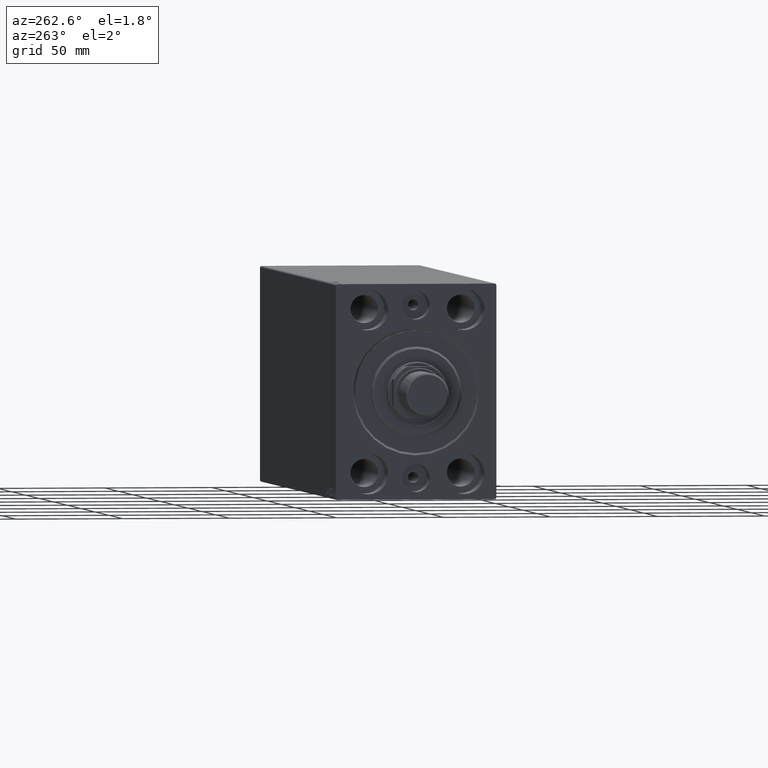
[diagram: clean part render]
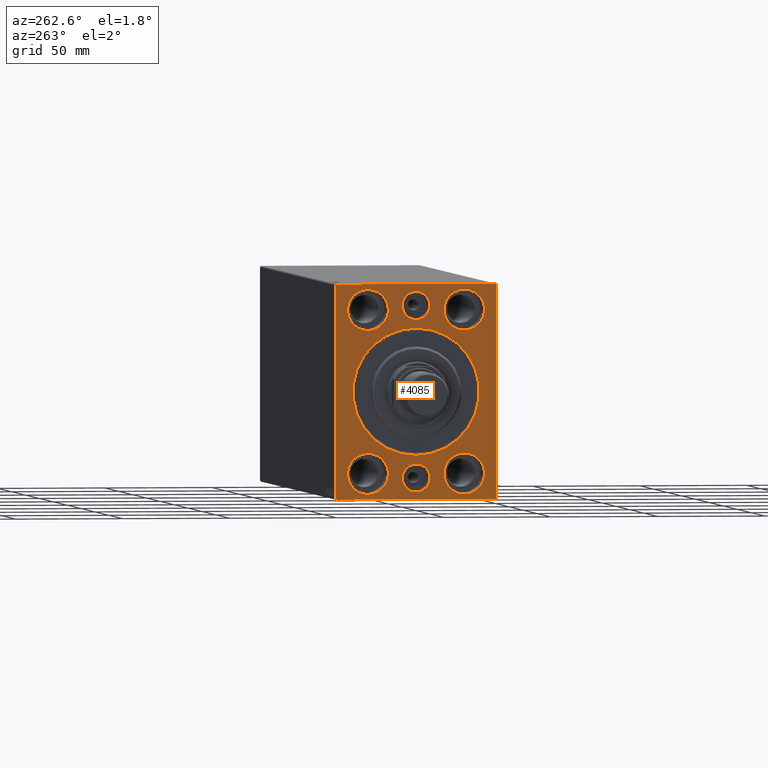
[diagram: same view with one face highlighted and labeled with its STEP entity id]
A machine part, auxiliary view. The second image highlights one B-rep face of the part: STEP entity #4085.
In plain terms, the highlighted planar face has unit normal (1, 0, 0).
Its self-contained STEP definition (entity closure, byte-faithful):
#24 = CIRCLE ( 'NONE', #17909, 6.499999999999999112 ) ;
#259 = DIRECTION ( 'NONE',  ( 0.000000000000000000, 0.000000000000000000, 1.000000000000000000 ) ) ;
#643 = AXIS2_PLACEMENT_3D ( 'NONE', #38310, #21307, #259 ) ;
#845 = ORIENTED_EDGE ( 'NONE', *, *, #22408, .T. ) ;
#861 = ORIENTED_EDGE ( 'NONE', *, *, #19230, .F. ) ;
#935 = ORIENTED_EDGE ( 'NONE', *, *, #21781, .T. ) ;
#1197 = DIRECTION ( 'NONE',  ( 0.000000000000000000, 0.000000000000000000, 1.000000000000000000 ) ) ;
#1763 = VERTEX_POINT ( 'NONE', #35763 ) ;
#1944 = ORIENTED_EDGE ( 'NONE', *, *, #34932, .F. ) ;
#2050 = CARTESIAN_POINT ( 'NONE',  ( 0.000000000000000000, 0.000000000000000000, -33.50000000000000000 ) ) ;
#2159 = DIRECTION ( 'NONE',  ( 1.000000000000000000, 0.000000000000000000, 0.000000000000000000 ) ) ;
#2347 = EDGE_CURVE ( 'NONE', #27330, #9064, #2796, .T. ) ;
#2478 = EDGE_CURVE ( 'NONE', #28062, #28492, #27124, .T. ) ;
#2796 = CIRCLE ( 'NONE', #34237, 9.500000000000001776 ) ;
#3045 = DIRECTION ( 'NONE',  ( -0.000000000000000000, 0.7071067811865474617, 0.7071067811865474617 ) ) ;
#3179 = VERTEX_POINT ( 'NONE', #38599 ) ;
#3441 = EDGE_CURVE ( 'NONE', #40237, #8487, #40082, .T. ) ;
#3509 = VERTEX_POINT ( 'NONE', #32928 ) ;
#3916 = CARTESIAN_POINT ( 'NONE',  ( 0.000000000000000000, -22.50000000000000711, -47.49999999999999289 ) ) ;
#4085 = ADVANCED_FACE ( 'NONE', ( #32598, #39550, #35957, #12008, #25666, #8903, #35726, #9549 ), #29472, .F. ) ;
#4148 = DIRECTION ( 'NONE',  ( 0.000000000000000000, 0.000000000000000000, 1.000000000000000000 ) ) ;
#4720 = DIRECTION ( 'NONE',  ( -1.000000000000000000, 0.000000000000000000, 0.000000000000000000 ) ) ;
#5338 = LINE ( 'NONE', #31977, #23656 ) ;
#5381 = DIRECTION ( 'NONE',  ( 0.000000000000000000, 0.000000000000000000, 1.000000000000000000 ) ) ;
#5806 = CIRCLE ( 'NONE', #30067, 9.500000000000001776 ) ;
#5856 = DIRECTION ( 'NONE',  ( -0.000000000000000000, 0.7071067811865426878, -0.7071067811865524577 ) ) ;
#5943 = VECTOR ( 'NONE', #5856, 1000.000000000000000 ) ;
#6370 = AXIS2_PLACEMENT_3D ( 'NONE', #39185, #4720, #41694 ) ;
#6635 = VECTOR ( 'NONE', #41648, 1000.000000000000000 ) ;
#6659 = CARTESIAN_POINT ( 'NONE',  ( 0.000000000000000000, -22.50000000000000711, -28.49999999999998934 ) ) ;
#6675 = CIRCLE ( 'NONE', #32428, 9.500000000000001776 ) ;
#6783 = ORIENTED_EDGE ( 'NONE', *, *, #22872, .T. ) ;
#7229 = VERTEX_POINT ( 'NONE', #43444 ) ;
#7354 = DIRECTION ( 'NONE',  ( 0.000000000000000000, 0.000000000000000000, 1.000000000000000000 ) ) ;
#7360 = AXIS2_PLACEMENT_3D ( 'NONE', #21229, #28169, #7354 ) ;
#8170 = CARTESIAN_POINT ( 'NONE',  ( 0.000000000000000000, 0.000000000000000000, 40.00000000000000000 ) ) ;
#8243 = DIRECTION ( 'NONE',  ( -1.000000000000000000, 0.000000000000000000, 0.000000000000000000 ) ) ;
#8343 = VERTEX_POINT ( 'NONE', #9393 ) ;
#8487 = VERTEX_POINT ( 'NONE', #27714 ) ;
#8667 = CARTESIAN_POINT ( 'NONE',  ( 0.000000000000000000, 0.000000000000000000, 0.000000000000000000 ) ) ;
#8800 = CARTESIAN_POINT ( 'NONE',  ( 0.000000000000000000, 22.49999999999999645, -47.49999999999999289 ) ) ;
#8903 = FACE_BOUND ( 'NONE', #25619, .T. ) ;
#8981 = DIRECTION ( 'NONE',  ( 0.000000000000000000, 1.000000000000000000, 9.251858538542970348E-17 ) ) ;
#9064 = VERTEX_POINT ( 'NONE', #26401 ) ;
#9339 = DIRECTION ( 'NONE',  ( 1.000000000000000000, 0.000000000000000000, 0.000000000000000000 ) ) ;
#9393 = CARTESIAN_POINT ( 'NONE',  ( 0.000000000000000000, 22.49999999999999645, -28.49999999999998934 ) ) ;
#9549 = FACE_OUTER_BOUND ( 'NONE', #30937, .T. ) ;
#9711 = ORIENTED_EDGE ( 'NONE', *, *, #22561, .F. ) ;
#10067 = EDGE_CURVE ( 'NONE', #42624, #1763, #20695, .T. ) ;
#10100 = LINE ( 'NONE', #17027, #5943 ) ;
#10315 = CARTESIAN_POINT ( 'NONE',  ( 0.000000000000000000, 37.49999999999999289, 50.00000000000000711 ) ) ;
#10816 = ORIENTED_EDGE ( 'NONE', *, *, #15572, .F. ) ;
#10896 = EDGE_CURVE ( 'NONE', #28492, #28062, #5806, .T. ) ;
#10950 = ORIENTED_EDGE ( 'NONE', *, *, #10896, .F. ) ;
#11332 = AXIS2_PLACEMENT_3D ( 'NONE', #20964, #34606, #4148 ) ;
#11394 = EDGE_CURVE ( 'NONE', #40237, #22878, #5338, .T. ) ;
#11683 = DIRECTION ( 'NONE',  ( -1.000000000000000000, 0.000000000000000000, 0.000000000000000000 ) ) ;
#11813 = ORIENTED_EDGE ( 'NONE', *, *, #10067, .F. ) ;
#11944 = EDGE_CURVE ( 'NONE', #39101, #44123, #32962, .T. ) ;
#12008 = FACE_BOUND ( 'NONE', #31726, .T. ) ;
#12280 = ORIENTED_EDGE ( 'NONE', *, *, #38776, .F. ) ;
#12869 = CARTESIAN_POINT ( 'NONE',  ( 0.000000000000000000, -37.50000000000000711, 49.49999999999994316 ) ) ;
#12895 = DIRECTION ( 'NONE',  ( 0.000000000000000000, 0.000000000000000000, -1.000000000000000000 ) ) ;
#13064 = CIRCLE ( 'NONE', #7360, 6.499999999999999112 ) ;
#13673 = AXIS2_PLACEMENT_3D ( 'NONE', #26220, #11683, #39865 ) ;
#14147 = DIRECTION ( 'NONE',  ( 0.000000000000000000, 0.000000000000000000, 1.000000000000000000 ) ) ;
#14169 = ORIENTED_EDGE ( 'NONE', *, *, #27650, .F. ) ;
#14564 = LINE ( 'NONE', #10315, #6635 ) ;
#15090 = DIRECTION ( 'NONE',  ( -1.000000000000000000, 0.000000000000000000, 0.000000000000000000 ) ) ;
#15206 = CIRCLE ( 'NONE', #28098, 29.50000000000002842 ) ;
#15572 = EDGE_CURVE ( 'NONE', #8343, #40795, #6675, .T. ) ;
#15637 = AXIS2_PLACEMENT_3D ( 'NONE', #40429, #9339, #29691 ) ;
#15766 = DIRECTION ( 'NONE',  ( 0.000000000000000000, 0.000000000000000000, 1.000000000000000000 ) ) ;
#15840 = ORIENTED_EDGE ( 'NONE', *, *, #19334, .F. ) ;
#16150 = CARTESIAN_POINT ( 'NONE',  ( 0.000000000000000000, 37.50000000000000711, -50.00000000000000000 ) ) ;
#16322 = VECTOR ( 'NONE', #43009, 1000.000000000000000 ) ;
#16375 = AXIS2_PLACEMENT_3D ( 'NONE', #19043, #22404, #5381 ) ;
#16464 = EDGE_LOOP ( 'NONE', ( #861, #43146 ) ) ;
#16500 = EDGE_CURVE ( 'NONE', #18245, #33535, #42064, .T. ) ;
#16814 = VERTEX_POINT ( 'NONE', #39957 ) ;
#17027 = CARTESIAN_POINT ( 'NONE',  ( 0.000000000000000000, 36.99999999999993605, 50.00000000000000711 ) ) ;
#17044 = CARTESIAN_POINT ( 'NONE',  ( 0.000000000000000000, -22.49999999999999645, 28.49999999999998934 ) ) ;
#17261 = AXIS2_PLACEMENT_3D ( 'NONE', #42748, #39630, #35158 ) ;
#17345 = CARTESIAN_POINT ( 'NONE',  ( 0.000000000000000000, -22.50000000000000711, -37.99999999999999289 ) ) ;
#17585 = EDGE_LOOP ( 'NONE', ( #26062, #10950 ) ) ;
#17820 = CIRCLE ( 'NONE', #643, 6.499999999999999112 ) ;
#17909 = AXIS2_PLACEMENT_3D ( 'NONE', #8170, #15090, #15766 ) ;
#17927 = VECTOR ( 'NONE', #30984, 1000.000000000000000 ) ;
#18245 = VERTEX_POINT ( 'NONE', #17044 ) ;
#18374 = CARTESIAN_POINT ( 'NONE',  ( 0.000000000000000000, 7.960204194457798435E-16, 33.50000000000000000 ) ) ;
#18594 = CARTESIAN_POINT ( 'NONE',  ( 0.000000000000000000, -22.49999999999999645, 47.49999999999999289 ) ) ;
#18685 = CARTESIAN_POINT ( 'NONE',  ( 0.000000000000000000, 37.50000000000000711, -49.49999999999997158 ) ) ;
#18811 = LINE ( 'NONE', #43417, #20977 ) ;
#18857 = ORIENTED_EDGE ( 'NONE', *, *, #30229, .F. ) ;
#19043 = CARTESIAN_POINT ( 'NONE',  ( 0.000000000000000000, -22.49999999999999645, 37.99999999999999289 ) ) ;
#19230 = EDGE_CURVE ( 'NONE', #29062, #16814, #17820, .T. ) ;
#19334 = EDGE_CURVE ( 'NONE', #33535, #18245, #24969, .T. ) ;
#19350 = ORIENTED_EDGE ( 'NONE', *, *, #39395, .T. ) ;
#19982 = ORIENTED_EDGE ( 'NONE', *, *, #11944, .F. ) ;
#20096 = CIRCLE ( 'NONE', #17261, 9.500000000000001776 ) ;
#20615 = AXIS2_PLACEMENT_3D ( 'NONE', #28827, #42047, #35755 ) ;
#20641 = DIRECTION ( 'NONE',  ( -1.000000000000000000, 0.000000000000000000, 0.000000000000000000 ) ) ;
#20695 = LINE ( 'NONE', #31205, #17927 ) ;
#20964 = CARTESIAN_POINT ( 'NONE',  ( 0.000000000000000000, 22.50000000000000355, 37.99999999999999289 ) ) ;
#20977 = VECTOR ( 'NONE', #8981, 1000.000000000000000 ) ;
#21208 = EDGE_LOOP ( 'NONE', ( #19982, #14169 ) ) ;
#21229 = CARTESIAN_POINT ( 'NONE',  ( 0.000000000000000000, 0.000000000000000000, -40.00000000000000000 ) ) ;
#21307 = DIRECTION ( 'NONE',  ( -1.000000000000000000, 0.000000000000000000, 0.000000000000000000 ) ) ;
#21781 = EDGE_CURVE ( 'NONE', #3509, #30457, #32792, .T. ) ;
#22404 = DIRECTION ( 'NONE',  ( -1.000000000000000000, 0.000000000000000000, 0.000000000000000000 ) ) ;
#22408 = EDGE_CURVE ( 'NONE', #42624, #3179, #30124, .T. ) ;
#22561 = EDGE_CURVE ( 'NONE', #9064, #27330, #29210, .T. ) ;
#22872 = EDGE_CURVE ( 'NONE', #7229, #1763, #23313, .T. ) ;
#22878 = VERTEX_POINT ( 'NONE', #43258 ) ;
#23313 = LINE ( 'NONE', #43913, #26336 ) ;
#23437 = CARTESIAN_POINT ( 'NONE',  ( 0.000000000000000000, 22.50000000000000355, 28.49999999999998934 ) ) ;
#23656 = VECTOR ( 'NONE', #35127, 1000.000000000000000 ) ;
#24186 = VECTOR ( 'NONE', #3045, 1000.000000000000114 ) ;
#24884 = AXIS2_PLACEMENT_3D ( 'NONE', #8667, #2159, #12895 ) ;
#24969 = CIRCLE ( 'NONE', #16375, 9.500000000000001776 ) ;
#25011 = CARTESIAN_POINT ( 'NONE',  ( 0.000000000000000000, 0.000000000000000000, 46.50000000000000000 ) ) ;
#25619 = EDGE_LOOP ( 'NONE', ( #9711, #40370 ) ) ;
#25666 = FACE_BOUND ( 'NONE', #35961, .T. ) ;
#26062 = ORIENTED_EDGE ( 'NONE', *, *, #2478, .F. ) ;
#26220 = CARTESIAN_POINT ( 'NONE',  ( 0.000000000000000000, 0.000000000000000000, 40.00000000000000000 ) ) ;
#26336 = VECTOR ( 'NONE', #30016, 1000.000000000000000 ) ;
#26346 = CARTESIAN_POINT ( 'NONE',  ( 0.000000000000000000, -37.50000000000000711, 49.49999999999994316 ) ) ;
#26401 = CARTESIAN_POINT ( 'NONE',  ( 0.000000000000000000, 22.50000000000000355, 47.49999999999999289 ) ) ;
#27048 = ORIENTED_EDGE ( 'NONE', *, *, #39055, .T. ) ;
#27124 = CIRCLE ( 'NONE', #6370, 9.500000000000001776 ) ;
#27330 = VERTEX_POINT ( 'NONE', #23437 ) ;
#27650 = EDGE_CURVE ( 'NONE', #44123, #39101, #24, .T. ) ;
#27714 = CARTESIAN_POINT ( 'NONE',  ( 0.000000000000000000, 37.49999999999999289, 49.49999999999995026 ) ) ;
#28062 = VERTEX_POINT ( 'NONE', #6659 ) ;
#28098 = AXIS2_PLACEMENT_3D ( 'NONE', #35506, #42025, #39088 ) ;
#28169 = DIRECTION ( 'NONE',  ( -1.000000000000000000, 0.000000000000000000, 0.000000000000000000 ) ) ;
#28178 = ORIENTED_EDGE ( 'NONE', *, *, #11394, .T. ) ;
#28492 = VERTEX_POINT ( 'NONE', #3916 ) ;
#28827 = CARTESIAN_POINT ( 'NONE',  ( 0.000000000000000000, -22.49999999999999645, 37.99999999999999289 ) ) ;
#29062 = VERTEX_POINT ( 'NONE', #2050 ) ;
#29210 = CIRCLE ( 'NONE', #11332, 9.500000000000001776 ) ;
#29472 = PLANE ( 'NONE',  #24884 ) ;
#29691 = DIRECTION ( 'NONE',  ( 0.000000000000000000, 0.000000000000000000, -1.000000000000000000 ) ) ;
#30016 = DIRECTION ( 'NONE',  ( -0.000000000000000000, -0.7071067811865672237, 0.7071067811865279218 ) ) ;
#30067 = AXIS2_PLACEMENT_3D ( 'NONE', #17345, #31872, #1197 ) ;
#30124 = LINE ( 'NONE', #26346, #24186 ) ;
#30229 = EDGE_CURVE ( 'NONE', #40795, #8343, #20096, .T. ) ;
#30457 = VERTEX_POINT ( 'NONE', #40724 ) ;
#30937 = EDGE_LOOP ( 'NONE', ( #11813, #845, #12280, #19350, #39108, #28178, #1944, #6783 ) ) ;
#30984 = DIRECTION ( 'NONE',  ( 0.000000000000000000, 0.000000000000000000, -1.000000000000000000 ) ) ;
#31205 = CARTESIAN_POINT ( 'NONE',  ( 0.000000000000000000, -37.50000000000000711, 49.99999999999999289 ) ) ;
#31726 = EDGE_LOOP ( 'NONE', ( #10816, #18857 ) ) ;
#31872 = DIRECTION ( 'NONE',  ( -1.000000000000000000, 0.000000000000000000, 0.000000000000000000 ) ) ;
#31977 = CARTESIAN_POINT ( 'NONE',  ( 0.000000000000000000, 37.50000000000000711, -49.49999999999997158 ) ) ;
#32428 = AXIS2_PLACEMENT_3D ( 'NONE', #38895, #8243, #42691 ) ;
#32598 = FACE_BOUND ( 'NONE', #16464, .T. ) ;
#32792 = CIRCLE ( 'NONE', #15637, 29.50000000000002842 ) ;
#32928 = CARTESIAN_POINT ( 'NONE',  ( 0.000000000000000000, 3.612708057484695548E-15, -29.50000000000002842 ) ) ;
#32962 = CIRCLE ( 'NONE', #13673, 6.499999999999999112 ) ;
#33535 = VERTEX_POINT ( 'NONE', #18594 ) ;
#34237 = AXIS2_PLACEMENT_3D ( 'NONE', #40794, #20641, #14147 ) ;
#34492 = ORIENTED_EDGE ( 'NONE', *, *, #16500, .F. ) ;
#34606 = DIRECTION ( 'NONE',  ( -1.000000000000000000, 0.000000000000000000, 0.000000000000000000 ) ) ;
#34932 = EDGE_CURVE ( 'NONE', #7229, #22878, #18811, .T. ) ;
#35127 = DIRECTION ( 'NONE',  ( 0.000000000000000000, -0.7071067811865279218, -0.7071067811865672237 ) ) ;
#35158 = DIRECTION ( 'NONE',  ( 0.000000000000000000, 0.000000000000000000, 1.000000000000000000 ) ) ;
#35462 = EDGE_LOOP ( 'NONE', ( #27048, #935 ) ) ;
#35506 = CARTESIAN_POINT ( 'NONE',  ( 0.000000000000000000, 0.000000000000000000, 0.000000000000000000 ) ) ;
#35726 = FACE_BOUND ( 'NONE', #17585, .T. ) ;
#35755 = DIRECTION ( 'NONE',  ( 0.000000000000000000, 0.000000000000000000, 1.000000000000000000 ) ) ;
#35763 = CARTESIAN_POINT ( 'NONE',  ( 0.000000000000000000, -37.50000000000000711, -49.50000000000000711 ) ) ;
#35957 = FACE_BOUND ( 'NONE', #35462, .T. ) ;
#35961 = EDGE_LOOP ( 'NONE', ( #15840, #34492 ) ) ;
#38310 = CARTESIAN_POINT ( 'NONE',  ( 0.000000000000000000, 0.000000000000000000, -40.00000000000000000 ) ) ;
#38580 = CARTESIAN_POINT ( 'NONE',  ( 0.000000000000000000, 36.99999999999993605, 50.00000000000000711 ) ) ;
#38599 = CARTESIAN_POINT ( 'NONE',  ( 0.000000000000000000, -36.99999999999995026, 49.99999999999999289 ) ) ;
#38776 = EDGE_CURVE ( 'NONE', #42890, #3179, #14564, .T. ) ;
#38895 = CARTESIAN_POINT ( 'NONE',  ( 0.000000000000000000, 22.49999999999999645, -37.99999999999999289 ) ) ;
#39055 = EDGE_CURVE ( 'NONE', #30457, #3509, #15206, .T. ) ;
#39088 = DIRECTION ( 'NONE',  ( 0.000000000000000000, 0.000000000000000000, -1.000000000000000000 ) ) ;
#39101 = VERTEX_POINT ( 'NONE', #25011 ) ;
#39108 = ORIENTED_EDGE ( 'NONE', *, *, #3441, .F. ) ;
#39185 = CARTESIAN_POINT ( 'NONE',  ( 0.000000000000000000, -22.50000000000000711, -37.99999999999999289 ) ) ;
#39395 = EDGE_CURVE ( 'NONE', #42890, #8487, #10100, .T. ) ;
#39550 = FACE_BOUND ( 'NONE', #21208, .T. ) ;
#39630 = DIRECTION ( 'NONE',  ( -1.000000000000000000, 0.000000000000000000, 0.000000000000000000 ) ) ;
#39793 = EDGE_CURVE ( 'NONE', #16814, #29062, #13064, .T. ) ;
#39865 = DIRECTION ( 'NONE',  ( 0.000000000000000000, 0.000000000000000000, 1.000000000000000000 ) ) ;
#39957 = CARTESIAN_POINT ( 'NONE',  ( 0.000000000000000000, 7.960204194457798435E-16, -46.50000000000000000 ) ) ;
#40082 = LINE ( 'NONE', #16150, #16322 ) ;
#40237 = VERTEX_POINT ( 'NONE', #18685 ) ;
#40370 = ORIENTED_EDGE ( 'NONE', *, *, #2347, .F. ) ;
#40429 = CARTESIAN_POINT ( 'NONE',  ( 0.000000000000000000, 0.000000000000000000, 0.000000000000000000 ) ) ;
#40724 = CARTESIAN_POINT ( 'NONE',  ( 0.000000000000000000, 0.000000000000000000, 29.50000000000002842 ) ) ;
#40794 = CARTESIAN_POINT ( 'NONE',  ( 0.000000000000000000, 22.50000000000000355, 37.99999999999999289 ) ) ;
#40795 = VERTEX_POINT ( 'NONE', #8800 ) ;
#41648 = DIRECTION ( 'NONE',  ( 0.000000000000000000, -1.000000000000000000, -1.850371707708594316E-16 ) ) ;
#41694 = DIRECTION ( 'NONE',  ( 0.000000000000000000, 0.000000000000000000, 1.000000000000000000 ) ) ;
#42025 = DIRECTION ( 'NONE',  ( 1.000000000000000000, 0.000000000000000000, 0.000000000000000000 ) ) ;
#42047 = DIRECTION ( 'NONE',  ( -1.000000000000000000, 0.000000000000000000, 0.000000000000000000 ) ) ;
#42064 = CIRCLE ( 'NONE', #20615, 9.500000000000001776 ) ;
#42624 = VERTEX_POINT ( 'NONE', #12869 ) ;
#42691 = DIRECTION ( 'NONE',  ( 0.000000000000000000, 0.000000000000000000, 1.000000000000000000 ) ) ;
#42748 = CARTESIAN_POINT ( 'NONE',  ( 0.000000000000000000, 22.49999999999999645, -37.99999999999999289 ) ) ;
#42890 = VERTEX_POINT ( 'NONE', #38580 ) ;
#43009 = DIRECTION ( 'NONE',  ( 0.000000000000000000, -1.387778780781445676E-16, 1.000000000000000000 ) ) ;
#43146 = ORIENTED_EDGE ( 'NONE', *, *, #39793, .F. ) ;
#43258 = CARTESIAN_POINT ( 'NONE',  ( 0.000000000000000000, 37.00000000000000711, -50.00000000000000000 ) ) ;
#43417 = CARTESIAN_POINT ( 'NONE',  ( 0.000000000000000000, -37.50000000000000711, -50.00000000000000711 ) ) ;
#43444 = CARTESIAN_POINT ( 'NONE',  ( 0.000000000000000000, -36.99999999999997868, -50.00000000000000711 ) ) ;
#43913 = CARTESIAN_POINT ( 'NONE',  ( 0.000000000000000000, -36.99999999999997868, -50.00000000000000711 ) ) ;
#44123 = VERTEX_POINT ( 'NONE', #18374 ) ;